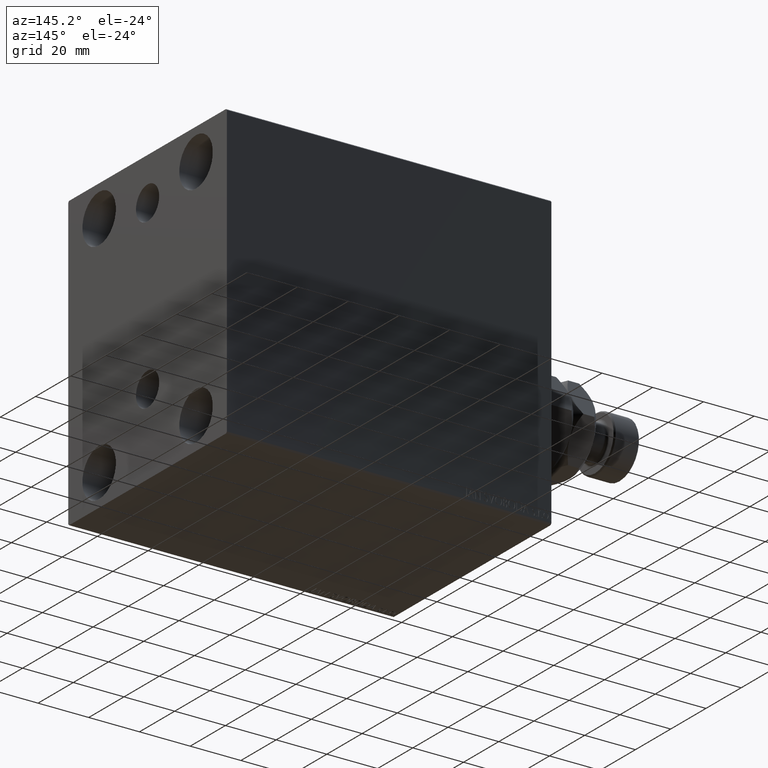
[diagram: clean part render]
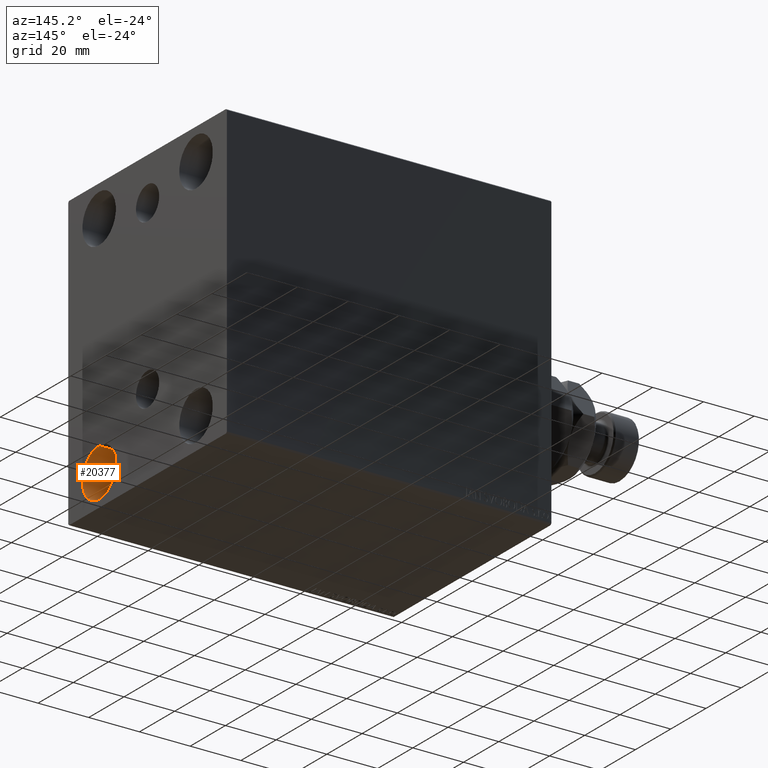
[diagram: same view with one face highlighted and labeled with its STEP entity id]
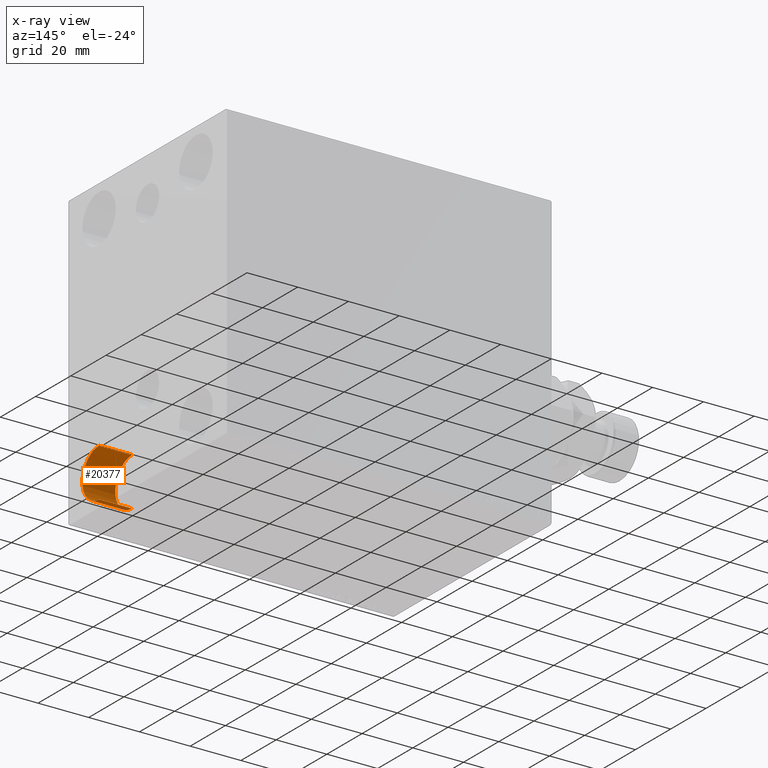
[diagram: x-ray of the same camera — body ghosted, the highlighted face saturated]
A machine part, auxiliary view. The second image highlights one B-rep face of the part: STEP entity #20377.
The next image is the same camera in x-ray: the body ghosted, the highlighted face saturated — about 0% of this face is hidden behind the body in this view.
In plain terms, the highlighted cylindrical surface (edge-blend (fillet) strip) has radius 9.5 mm, axis along (1, 0, 0).
Its self-contained STEP definition (entity closure, byte-faithful):
#869 = CARTESIAN_POINT ( 'NONE',  ( 115.0000000000000000, -27.50000000000000000, -35.49999999999998579 ) ) ;
#961 = DIRECTION ( 'NONE',  ( 1.000000000000000000, -0.000000000000000000, -0.000000000000000000 ) ) ;
#1034 = CARTESIAN_POINT ( 'NONE',  ( 115.0000000000000000, -27.50000000000000000, -54.49999999999998579 ) ) ;
#4279 = DIRECTION ( 'NONE',  ( -1.000000000000000000, -0.000000000000000000, -0.000000000000000000 ) ) ;
#4615 = EDGE_CURVE ( 'NONE', #6884, #11608, #6691, .T. ) ;
#5326 = FACE_OUTER_BOUND ( 'NONE', #27668, .T. ) ;
#5513 = AXIS2_PLACEMENT_3D ( 'NONE', #36351, #961, #15010 ) ;
#6350 = EDGE_CURVE ( 'NONE', #6884, #22743, #12183, .T. ) ;
#6691 = CIRCLE ( 'NONE', #10317, 9.500000000000001776 ) ;
#6884 = VERTEX_POINT ( 'NONE', #1034 ) ;
#9751 = CIRCLE ( 'NONE', #11217, 9.500000000000001776 ) ;
#10317 = AXIS2_PLACEMENT_3D ( 'NONE', #30134, #44157, #11758 ) ;
#11217 = AXIS2_PLACEMENT_3D ( 'NONE', #18564, #4279, #28899 ) ;
#11608 = VERTEX_POINT ( 'NONE', #869 ) ;
#11634 = EDGE_CURVE ( 'NONE', #11608, #12303, #18360, .T. ) ;
#11758 = DIRECTION ( 'NONE',  ( 0.000000000000000000, 0.000000000000000000, 1.000000000000000000 ) ) ;
#11765 = CYLINDRICAL_SURFACE ( 'NONE', #5513, 9.500000000000001776 ) ;
#12183 = LINE ( 'NONE', #19332, #19232 ) ;
#12303 = VERTEX_POINT ( 'NONE', #43731 ) ;
#15010 = DIRECTION ( 'NONE',  ( 0.000000000000000000, 0.000000000000000000, -1.000000000000000000 ) ) ;
#18360 = LINE ( 'NONE', #22950, #36087 ) ;
#18564 = CARTESIAN_POINT ( 'NONE',  ( 128.0000000000000000, -27.50000000000000000, -44.99999999999998579 ) ) ;
#19232 = VECTOR ( 'NONE', #45498, 1000.000000000000000 ) ;
#19332 = CARTESIAN_POINT ( 'NONE',  ( 115.0000000000000000, -27.50000000000000000, -54.49999999999998579 ) ) ;
#20377 = ADVANCED_FACE ( 'NONE', ( #5326 ), #11765, .F. ) ;
#22530 = ORIENTED_EDGE ( 'NONE', *, *, #6350, .F. ) ;
#22743 = VERTEX_POINT ( 'NONE', #40242 ) ;
#22950 = CARTESIAN_POINT ( 'NONE',  ( 115.0000000000000000, -27.50000000000000000, -35.49999999999998579 ) ) ;
#23111 = ORIENTED_EDGE ( 'NONE', *, *, #42495, .F. ) ;
#27668 = EDGE_LOOP ( 'NONE', ( #45381, #39503, #23111, #22530 ) ) ;
#28899 = DIRECTION ( 'NONE',  ( 0.000000000000000000, 0.000000000000000000, 1.000000000000000000 ) ) ;
#30134 = CARTESIAN_POINT ( 'NONE',  ( 115.0000000000000000, -27.50000000000000000, -44.99999999999998579 ) ) ;
#36087 = VECTOR ( 'NONE', #43159, 1000.000000000000000 ) ;
#36351 = CARTESIAN_POINT ( 'NONE',  ( 115.0000000000000000, -27.50000000000000000, -44.99999999999998579 ) ) ;
#39503 = ORIENTED_EDGE ( 'NONE', *, *, #11634, .T. ) ;
#40242 = CARTESIAN_POINT ( 'NONE',  ( 128.0000000000000000, -27.50000000000000000, -54.49999999999998579 ) ) ;
#42495 = EDGE_CURVE ( 'NONE', #22743, #12303, #9751, .T. ) ;
#43159 = DIRECTION ( 'NONE',  ( 1.000000000000000000, -0.000000000000000000, -0.000000000000000000 ) ) ;
#43731 = CARTESIAN_POINT ( 'NONE',  ( 128.0000000000000000, -27.50000000000000000, -35.49999999999998579 ) ) ;
#44157 = DIRECTION ( 'NONE',  ( -1.000000000000000000, -0.000000000000000000, -0.000000000000000000 ) ) ;
#45381 = ORIENTED_EDGE ( 'NONE', *, *, #4615, .T. ) ;
#45498 = DIRECTION ( 'NONE',  ( 1.000000000000000000, -0.000000000000000000, -0.000000000000000000 ) ) ;